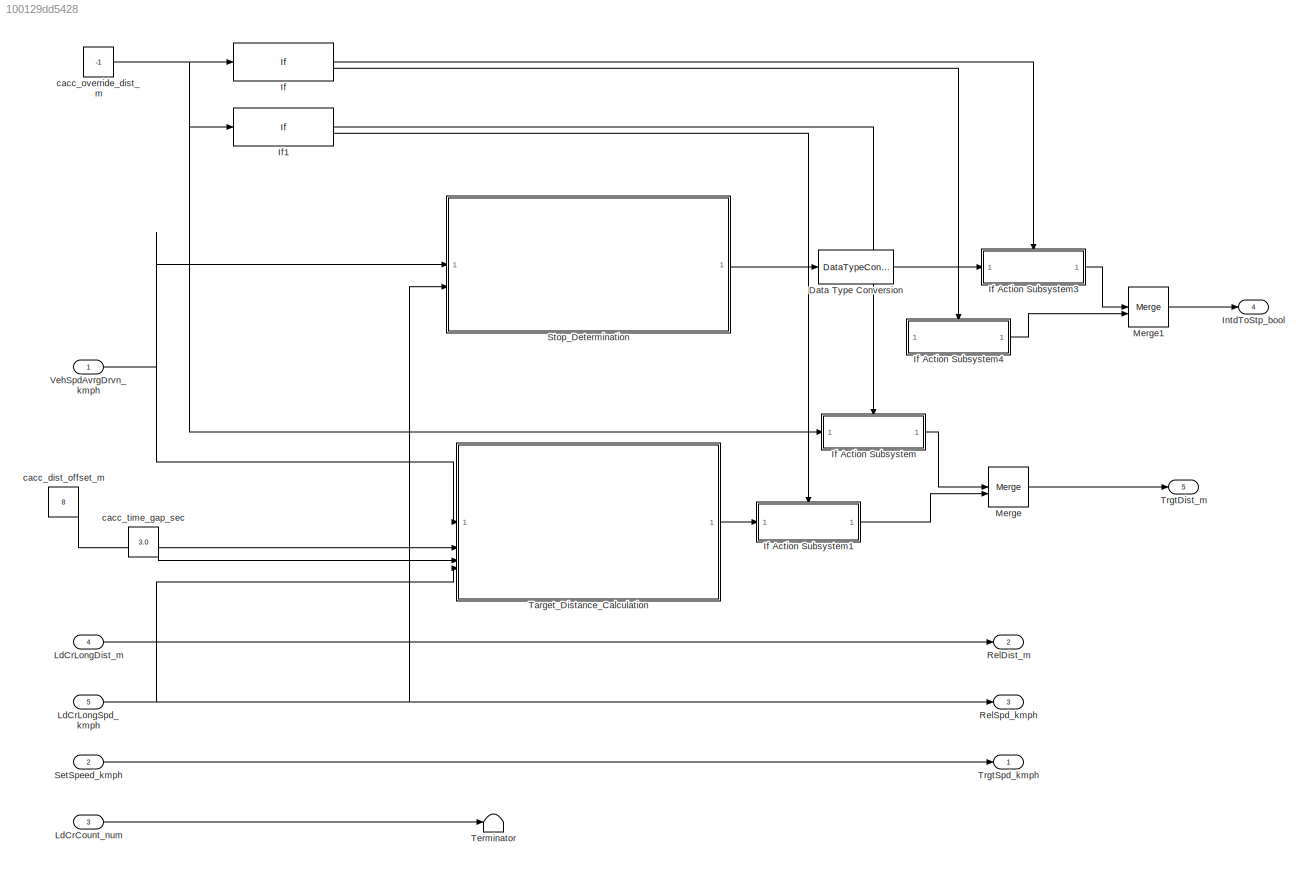
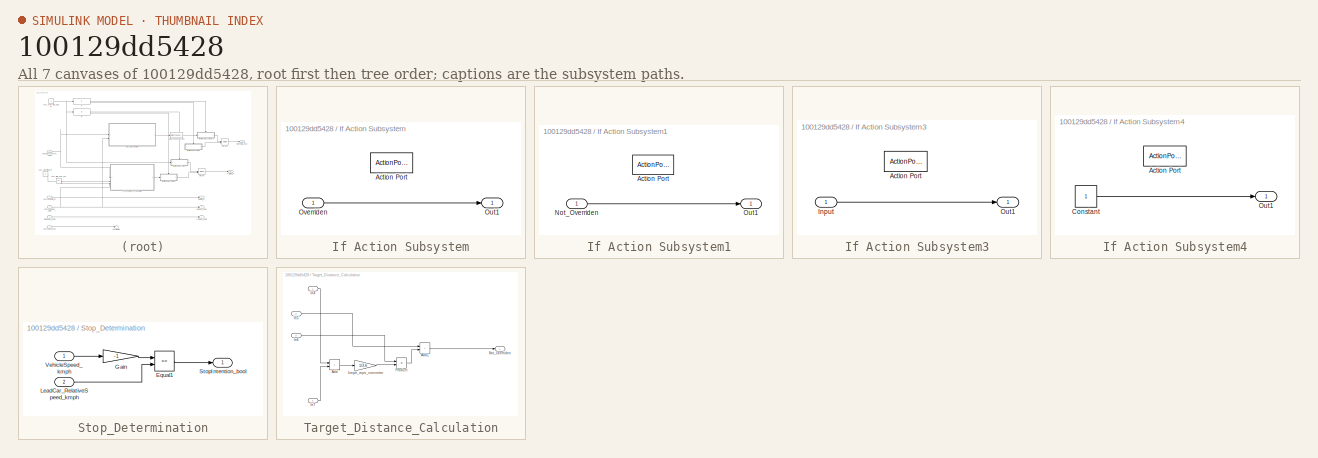
[diagram: thumbnail index - all 7 canvases of the model, root first then tree order]
MODEL slx_100129dd5428
KIND model
CONFIG AbsTol = auto
CONFIG EnableMultiTasking = off
CONFIG FixedStep = 0.010
CONFIG MaxStep = auto
CONFIG MinStep = auto
CONFIG RelTol = 1e-3
CONFIG SampleTimeConstraint = Unconstrained
CONFIG SolverName = FixedStepAuto
CONFIG StartTime = 0.0
CONFIG StopTime = inf
BLOCK [DataTypeConversion] Data Type Conversion
  OutDataTypeStr = double
  RndMeth = Floor
  SaturateOnIntegerOverflow = off
BLOCK [If] If
  IfExpression = u1 == -1
BLOCK [SubSystem] If Action Subsystem
  TreatAsAtomicUnit = on
BLOCK [ActionPort] If Action Subsystem/Action Port
  ActionPortLabel = if(u1 == -1)
BLOCK [Outport] If Action Subsystem/Out1
BLOCK [Inport] If Action Subsystem/Overriden
BLOCK [SubSystem] If Action Subsystem1
  TreatAsAtomicUnit = on
BLOCK [ActionPort] If Action Subsystem1/Action Port
  ActionPortLabel = else
BLOCK [Inport] If Action Subsystem1/Not_Overriden
BLOCK [Outport] If Action Subsystem1/Out1
BLOCK [SubSystem] If Action Subsystem3
  TreatAsAtomicUnit = on
BLOCK [ActionPort] If Action Subsystem3/Action Port
  ActionPortLabel = if(u1 == -1)
BLOCK [Inport] If Action Subsystem3/Input
BLOCK [Outport] If Action Subsystem3/Out1
BLOCK [SubSystem] If Action Subsystem4
  TreatAsAtomicUnit = on
BLOCK [ActionPort] If Action Subsystem4/Action Port
  ActionPortLabel = else
BLOCK [Constant] If Action Subsystem4/Constant
BLOCK [Outport] If Action Subsystem4/Out1
BLOCK [If] If1
  IfExpression = u1 == -1
BLOCK [Outport] IntdToStp_bool
  Port = 4
BLOCK [Inport] LdCrCount_num
  Port = 3
BLOCK [Inport] LdCrLongDist_m
  Port = 4
BLOCK [Inport] LdCrLongSpd_kmph
  Port = 5
BLOCK [Merge] Merge
BLOCK [Merge] Merge1
BLOCK [Outport] RelDist_m
  Port = 2
BLOCK [Outport] RelSpd_kmph
  Port = 3
BLOCK [Inport] SetSpeed_kmph
  Port = 2
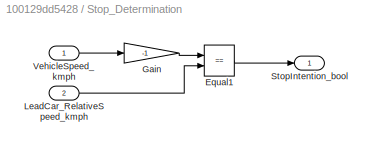
BLOCK [SubSystem] Stop_Determination
BLOCK [RelationalOperator] Stop_Determination/Equal1
  InputSameDT = off
  Operator = ==
  OutDataTypeStr = boolean
  RndMeth = Simplest
BLOCK [Gain] Stop_Determination/Gain
  Gain = -1
BLOCK [Inport] Stop_Determination/LeadCar_RelativeSpeed_kmph
  Port = 2
BLOCK [Outport] Stop_Determination/StopIntention_bool
BLOCK [Inport] Stop_Determination/VehicleSpeed_kmph
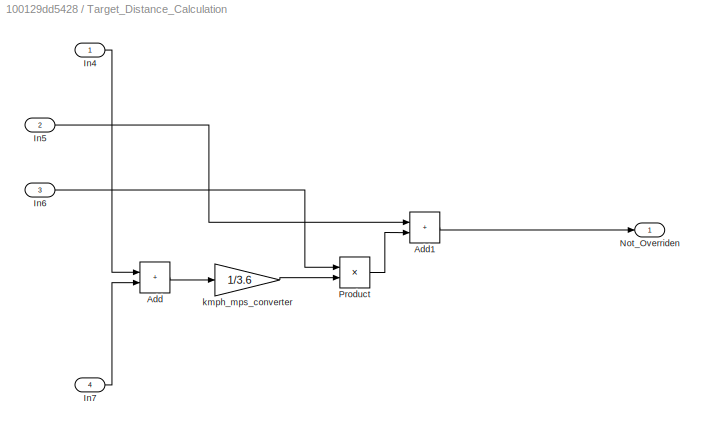
BLOCK [SubSystem] Target_Distance_Calculation
BLOCK [Sum] Target_Distance_Calculation/Add
  IconShape = rectangular
BLOCK [Sum] Target_Distance_Calculation/Add1
  IconShape = rectangular
BLOCK [Inport] Target_Distance_Calculation/In4
BLOCK [Inport] Target_Distance_Calculation/In5
  Port = 2
BLOCK [Inport] Target_Distance_Calculation/In6
  Port = 3
BLOCK [Inport] Target_Distance_Calculation/In7
  Port = 4
BLOCK [Outport] Target_Distance_Calculation/Not_Overriden
BLOCK [Product] Target_Distance_Calculation/Product
BLOCK [Gain] Target_Distance_Calculation/kmph_mps_converter
  Gain = 1/3.6
BLOCK [Terminator] Terminator
BLOCK [Outport] TrgtDist_m
  Port = 5
BLOCK [Outport] TrgtSpd_kmph
BLOCK [Inport] VehSpdAvrgDrvn_kmph
BLOCK [Constant] cacc_dist_offset_m
  Value = 8
BLOCK [Constant] cacc_override_dist_m
  Value = -1
BLOCK [Constant] cacc_time_gap_sec
  Value = 3.0
LINE Data Type Conversion:1 -> If Action Subsystem3:1
LINE If Action Subsystem/Overriden:1 -> If Action Subsystem/Out1:1
LINE If Action Subsystem1/Not_Overriden:1 -> If Action Subsystem1/Out1:1
LINE If Action Subsystem1:1 -> Merge:2
LINE If Action Subsystem3/Input:1 -> If Action Subsystem3/Out1:1
LINE If Action Subsystem3:1 -> Merge1:1
LINE If Action Subsystem4/Constant:1 -> If Action Subsystem4/Out1:1
LINE If Action Subsystem4:1 -> Merge1:2
LINE If Action Subsystem:1 -> Merge:1
LINE If1:1 -> If Action Subsystem:ifaction
LINE If1:2 -> If Action Subsystem1:ifaction
LINE If:1 -> If Action Subsystem3:ifaction
LINE If:2 -> If Action Subsystem4:ifaction
LINE LdCrCount_num:1 -> Terminator:1
LINE LdCrLongDist_m:1 -> RelDist_m:1
NET LdCrLongSpd_kmph:1 -> RelSpd_kmph:1, Stop_Determination:2, Target_Distance_Calculation:4
LINE Merge1:1 -> IntdToStp_bool:1
LINE Merge:1 -> TrgtDist_m:1
LINE SetSpeed_kmph:1 -> TrgtSpd_kmph:1
LINE Stop_Determination/Equal1:1 -> Stop_Determination/StopIntention_bool:1
LINE Stop_Determination/Gain:1 -> Stop_Determination/Equal1:1
LINE Stop_Determination/LeadCar_RelativeSpeed_kmph:1 -> Stop_Determination/Equal1:2
LINE Stop_Determination/VehicleSpeed_kmph:1 -> Stop_Determination/Gain:1
LINE Stop_Determination:1 -> Data Type Conversion:1
LINE Target_Distance_Calculation/Add1:1 -> Target_Distance_Calculation/Not_Overriden:1
LINE Target_Distance_Calculation/Add:1 -> Target_Distance_Calculation/kmph_mps_converter:1
LINE Target_Distance_Calculation/In4:1 -> Target_Distance_Calculation/Add:1
LINE Target_Distance_Calculation/In5:1 -> Target_Distance_Calculation/Add1:1
LINE Target_Distance_Calculation/In6:1 -> Target_Distance_Calculation/Product:1
LINE Target_Distance_Calculation/In7:1 -> Target_Distance_Calculation/Add:2
LINE Target_Distance_Calculation/Product:1 -> Target_Distance_Calculation/Add1:2
LINE Target_Distance_Calculation/kmph_mps_converter:1 -> Target_Distance_Calculation/Product:2
LINE Target_Distance_Calculation:1 -> If Action Subsystem1:1
NET VehSpdAvrgDrvn_kmph:1 -> Stop_Determination:1, Target_Distance_Calculation:1
LINE cacc_dist_offset_m:1 -> Target_Distance_Calculation:2
NET cacc_override_dist_m:1 -> If Action Subsystem:1, If1:1, If:1
LINE cacc_time_gap_sec:1 -> Target_Distance_Calculation:3
note: NET lines group one-source signal fan-out (src -> all destinations, sorted); 1:1 wires keep LINE
CHART Test Sequence states=1 transitions=1
  STATE_LABEL 'Run\n\n%% Initialize data outputs.\nVehSpdAvrgDrvn_kmph = 0;\nSetSpeed_kmph = 0;\nLdCrCount_num = 0;\nLdCrLongDist_m = 0;\nLdCrLongSpd_kmph = 0;\n'
